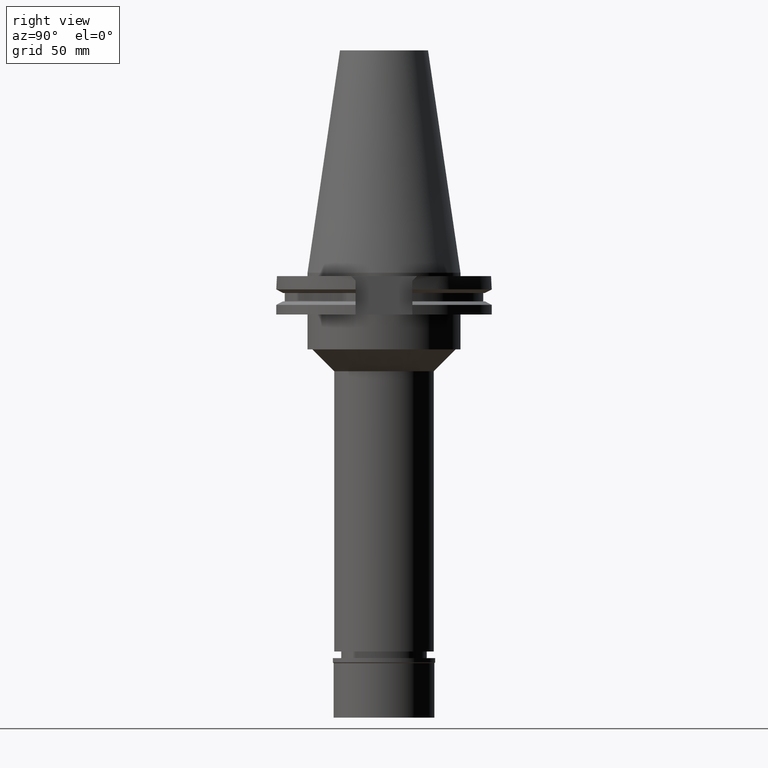
[diagram: clean part render]
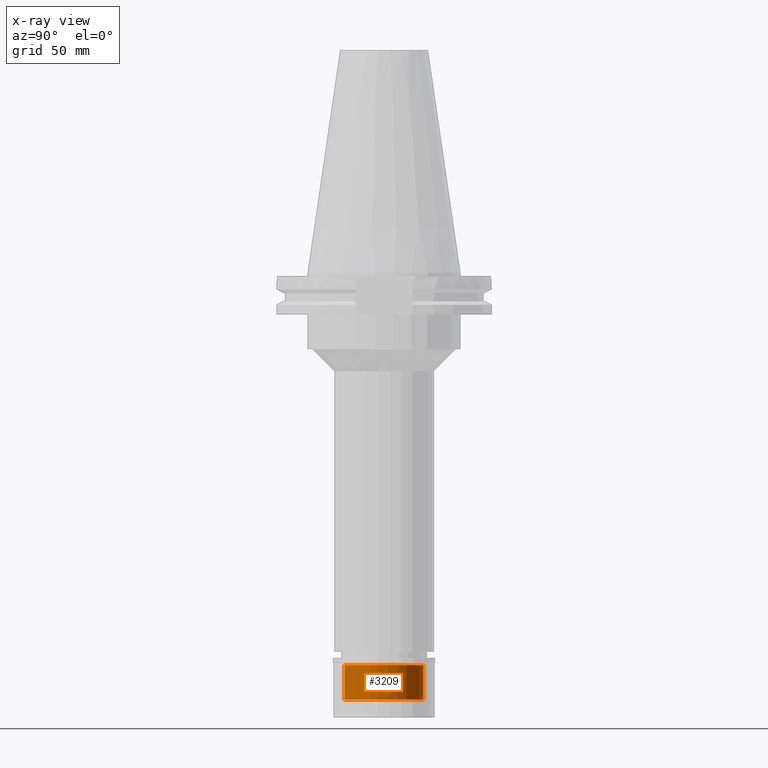
[diagram: x-ray — body ghosted, one internal face saturated and labeled with its STEP entity id]
A machine part, right view, then the same camera in x-ray: the body is ghosted and one INTERNAL B-rep face — a face not visible from any outside direction — is saturated and labeled: STEP entity #3209.
In plain terms, the highlighted cylindrical surface (partial cylindrical patch) has radius 18 mm, axis along (0, 0, -1).
Its self-contained STEP definition (entity closure, byte-faithful):
#120 = VERTEX_POINT ( 'NONE', #869 ) ;
#136 = VECTOR ( 'NONE', #3174, 1000.000000000000000 ) ;
#191 = AXIS2_PLACEMENT_3D ( 'NONE', #514, #2850, #1533 ) ;
#195 = CARTESIAN_POINT ( 'NONE',  ( 0.0000000000000000000, 0.0000000000000000000, 0.0000000000000000000 ) ) ;
#513 = CARTESIAN_POINT ( 'NONE',  ( 0.0000000000000000000, -18.00000000000000000, -19.00000000000000000 ) ) ;
#514 = CARTESIAN_POINT ( 'NONE',  ( 0.0000000000000000000, 0.0000000000000000000, -19.00000000000000000 ) ) ;
#525 = EDGE_CURVE ( 'NONE', #2049, #1628, #794, .T. ) ;
#609 = CARTESIAN_POINT ( 'NONE',  ( 0.0000000000000000000, 18.00000000000000000, -19.00000000000000000 ) ) ;
#741 = CYLINDRICAL_SURFACE ( 'NONE', #2961, 18.00000000000000000 ) ;
#751 = EDGE_CURVE ( 'NONE', #1628, #2127, #1897, .T. ) ;
#758 = FACE_OUTER_BOUND ( 'NONE', #2449, .T. ) ;
#794 = CIRCLE ( 'NONE', #191, 18.00000000000000000 ) ;
#799 = DIRECTION ( 'NONE',  ( 0.0000000000000000000, -1.000000000000000000, 0.0000000000000000000 ) ) ;
#869 = CARTESIAN_POINT ( 'NONE',  ( 0.0000000000000000000, 18.00000000000000000, -3.200000000000000178 ) ) ;
#1067 = DIRECTION ( 'NONE',  ( 0.0000000000000000000, 0.0000000000000000000, 1.000000000000000000 ) ) ;
#1170 = CARTESIAN_POINT ( 'NONE',  ( 0.0000000000000000000, -18.00000000000000000, -19.00000000000000000 ) ) ;
#1185 = DIRECTION ( 'NONE',  ( 0.0000000000000000000, 0.0000000000000000000, 1.000000000000000000 ) ) ;
#1342 = EDGE_CURVE ( 'NONE', #2127, #120, #2461, .T. ) ;
#1477 = VECTOR ( 'NONE', #1185, 1000.000000000000000 ) ;
#1533 = DIRECTION ( 'NONE',  ( 0.0000000000000000000, 1.000000000000000000, 0.0000000000000000000 ) ) ;
#1549 = ORIENTED_EDGE ( 'NONE', *, *, #751, .T. ) ;
#1628 = VERTEX_POINT ( 'NONE', #513 ) ;
#1808 = DIRECTION ( 'NONE',  ( 0.0000000000000000000, -1.000000000000000000, 0.0000000000000000000 ) ) ;
#1856 = ORIENTED_EDGE ( 'NONE', *, *, #525, .T. ) ;
#1897 = LINE ( 'NONE', #1170, #1477 ) ;
#1908 = LINE ( 'NONE', #609, #136 ) ;
#1923 = AXIS2_PLACEMENT_3D ( 'NONE', #2327, #1067, #799 ) ;
#1948 = CARTESIAN_POINT ( 'NONE',  ( 0.0000000000000000000, -18.00000000000000000, -3.200000000000000178 ) ) ;
#1996 = DIRECTION ( 'NONE',  ( 0.0000000000000000000, 0.0000000000000000000, -1.000000000000000000 ) ) ;
#2049 = VERTEX_POINT ( 'NONE', #2389 ) ;
#2127 = VERTEX_POINT ( 'NONE', #1948 ) ;
#2327 = CARTESIAN_POINT ( 'NONE',  ( 0.0000000000000000000, 0.0000000000000000000, -3.200000000000000178 ) ) ;
#2349 = EDGE_CURVE ( 'NONE', #2049, #120, #1908, .T. ) ;
#2389 = CARTESIAN_POINT ( 'NONE',  ( 0.0000000000000000000, 18.00000000000000000, -19.00000000000000000 ) ) ;
#2449 = EDGE_LOOP ( 'NONE', ( #1856, #1549, #3003, #3145 ) ) ;
#2461 = CIRCLE ( 'NONE', #1923, 18.00000000000000000 ) ;
#2850 = DIRECTION ( 'NONE',  ( 0.0000000000000000000, 0.0000000000000000000, -1.000000000000000000 ) ) ;
#2961 = AXIS2_PLACEMENT_3D ( 'NONE', #195, #1996, #1808 ) ;
#3003 = ORIENTED_EDGE ( 'NONE', *, *, #1342, .T. ) ;
#3145 = ORIENTED_EDGE ( 'NONE', *, *, #2349, .F. ) ;
#3174 = DIRECTION ( 'NONE',  ( 0.0000000000000000000, 0.0000000000000000000, 1.000000000000000000 ) ) ;
#3209 = ADVANCED_FACE ( 'NONE', ( #758 ), #741, .F. ) ;